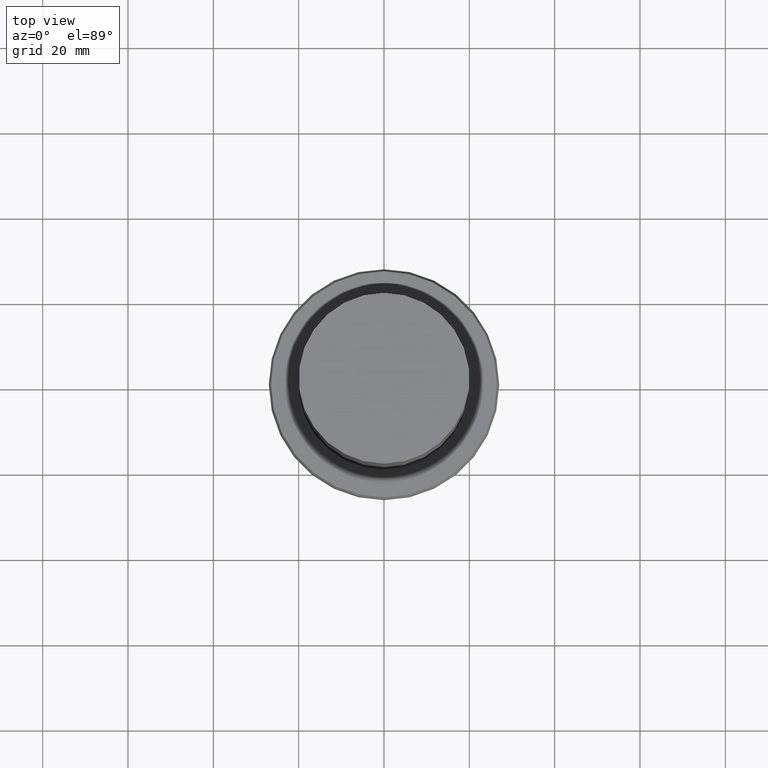
[diagram: clean part render]
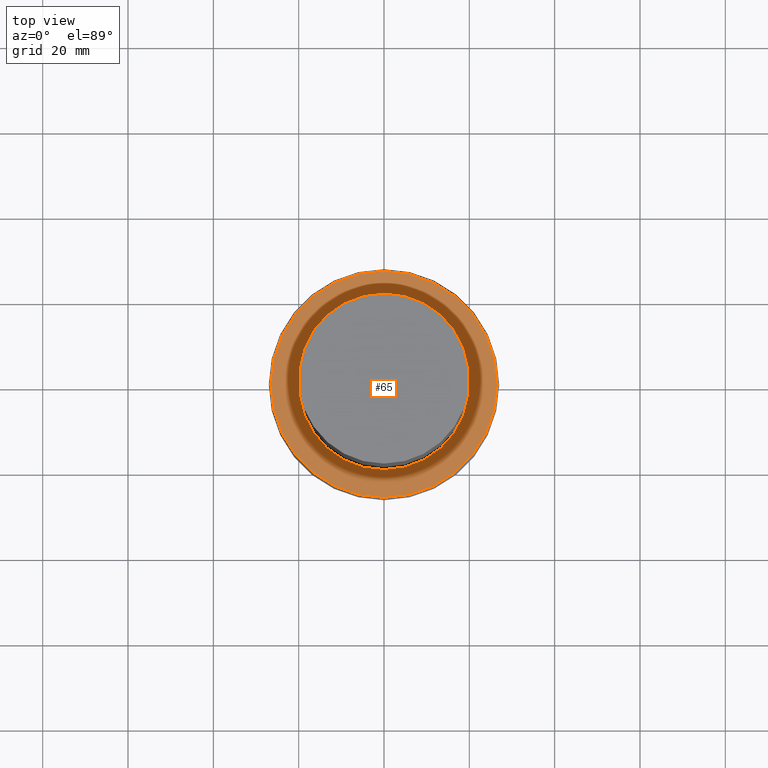
[diagram: same view with one face highlighted and labeled with its STEP entity id]
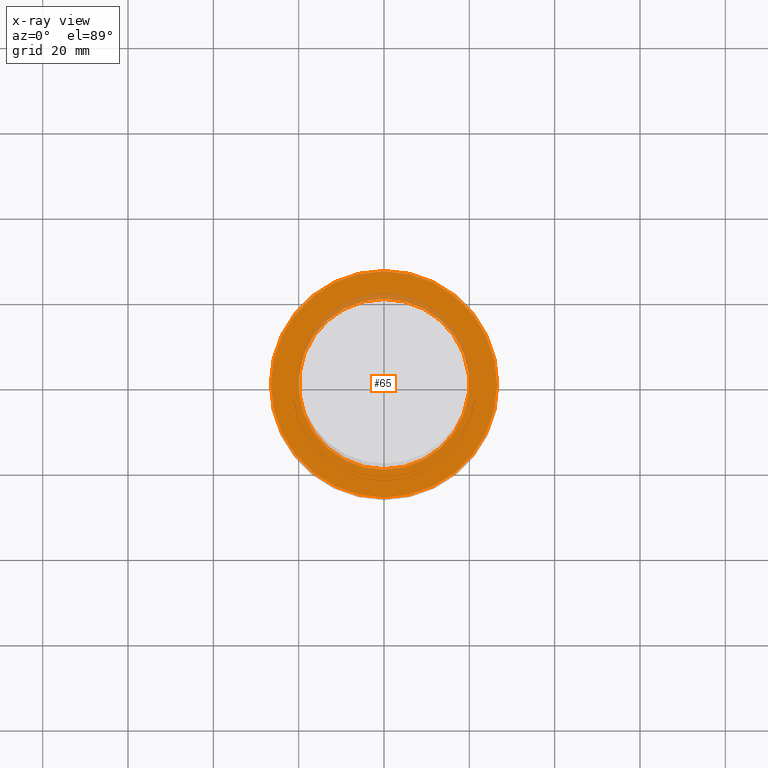
[diagram: x-ray of the same camera — body ghosted, the highlighted face saturated]
A machine part, top view. The second image highlights one B-rep face of the part: STEP entity #65.
The next image is the same camera in x-ray: the body ghosted, the highlighted face saturated — about 6% of this face is hidden behind the body in this view.
In plain terms, the highlighted planar face has unit normal (-0, -0, 1).
Its self-contained STEP definition (entity closure, byte-faithful):
#65=ADVANCED_FACE('Unnamed[1]',(#134,#135),#136,.T.);
#72=EDGE_CURVE('Unnamed[1]',#146,#146,#147,.T.);
#79=EDGE_CURVE('Unnamed[1]',#156,#156,#157,.T.);
#134=FACE_OUTER_BOUND('',#211,.T.);
#135=FACE_BOUND('',#212,.T.);
#136=PLANE('',#213);
#146=VERTEX_POINT('',#226);
#147=CIRCLE('',#227,26.4999999999965);
#156=VERTEX_POINT('',#239);
#157=CIRCLE('',#240,20.0000000000027);
#211=EDGE_LOOP('',(#282));
#212=EDGE_LOOP('',(#283));
#213=AXIS2_PLACEMENT_3D('',#284,#285,#286);
#226=CARTESIAN_POINT('',(-4.43934464690969E-015,26.4999999999965,72.5000000000087));
#227=AXIS2_PLACEMENT_3D('',#296,#297,#298);
#239=CARTESIAN_POINT('',(-4.43934464690969E-015,20.0000000000027,72.5000000000087));
#240=AXIS2_PLACEMENT_3D('',#307,#308,#309);
#282=ORIENTED_EDGE('',*,*,#72,.F.);
#283=ORIENTED_EDGE('',*,*,#79,.T.);
#284=CARTESIAN_POINT('',(-4.43934464690969E-015,23.2499999999996,72.5000000000087));
#285=DIRECTION('',(-6.12323399573677E-017,-2.03546435311683E-015,1.0));
#286=DIRECTION('',(1.29463397971922E-031,-1.0,-2.03546435311683E-015));
#296=CARTESIAN_POINT('',(-4.43934464690969E-015,-8.87868929381937E-015,72.5000000000087));
#297=DIRECTION('',(6.12323399573676E-017,1.2246467991475E-016,-1.0));
#298=DIRECTION('',(-1.23259516440799E-032,1.0,1.2246467991475E-016));
#307=CARTESIAN_POINT('',(-4.43934464690969E-015,-8.87868929381937E-015,72.5000000000087));
#308=DIRECTION('',(6.12323399573677E-017,1.22464679914744E-016,-1.0));
#309=DIRECTION('',(-1.23259516440789E-032,1.0,1.22464679914744E-016));